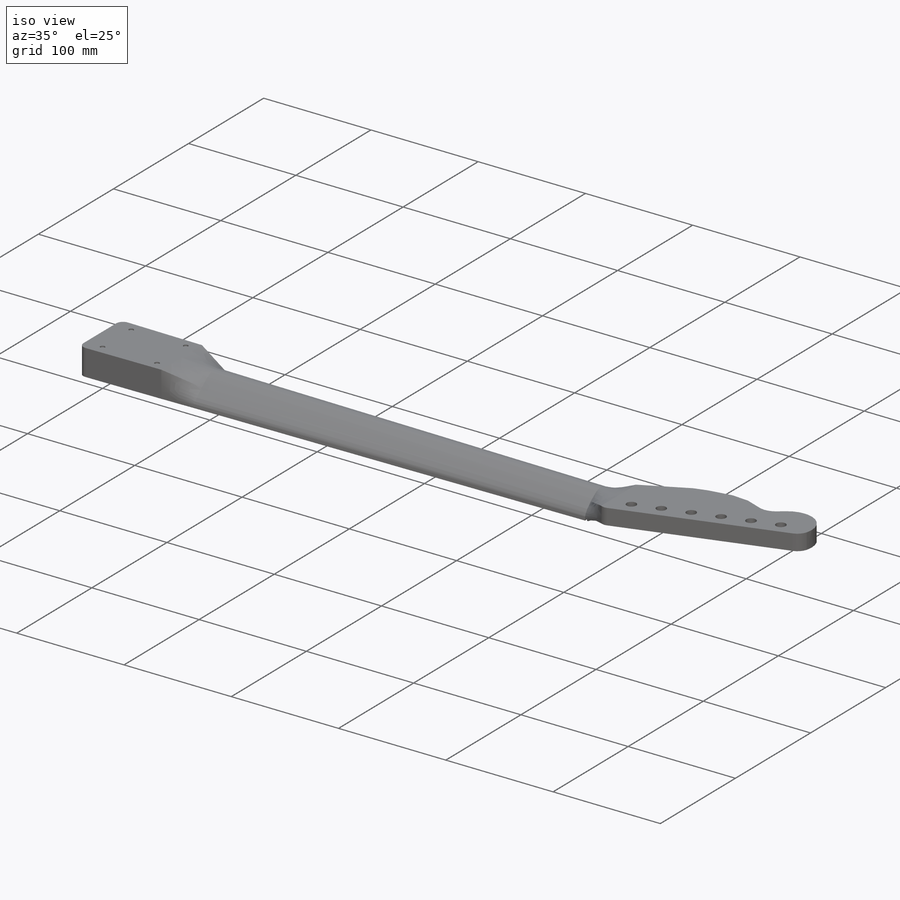
[diagram: iso view]
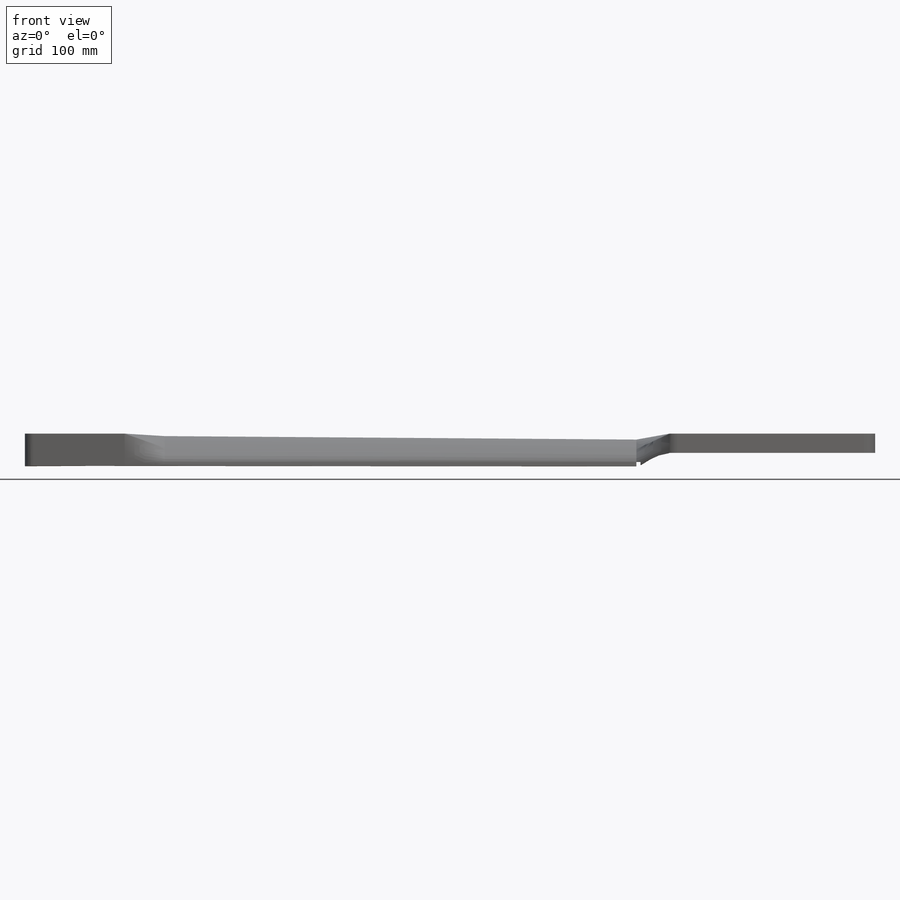
[diagram: front view]
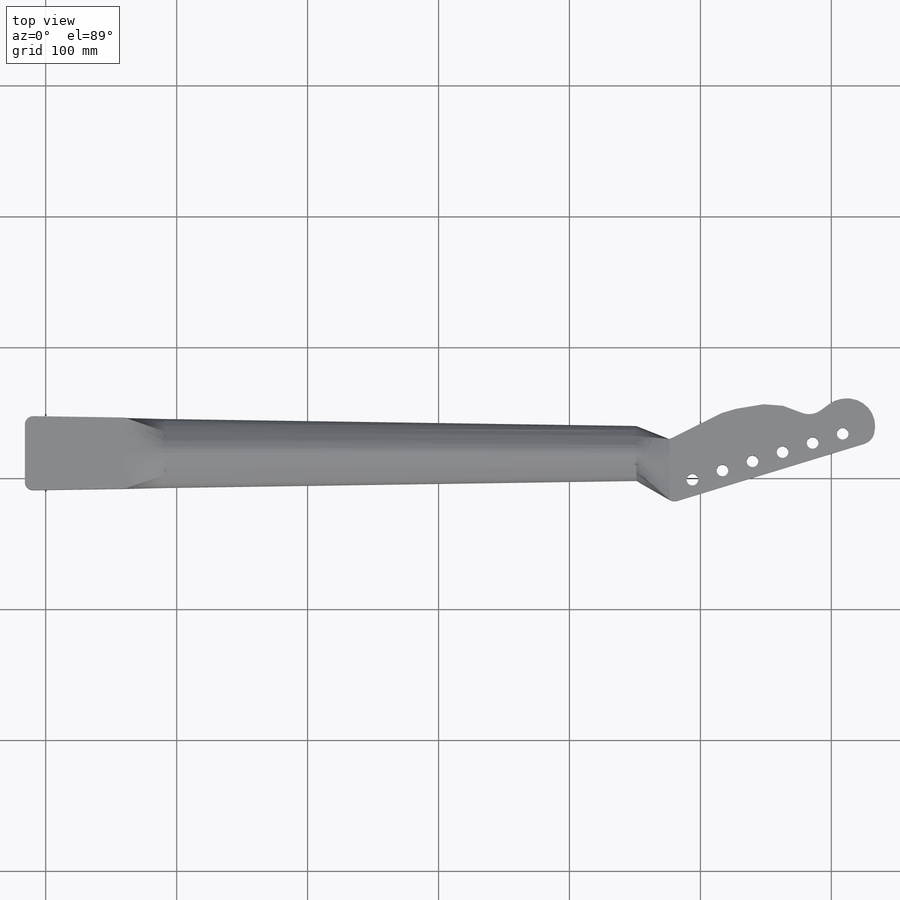
[diagram: top view]
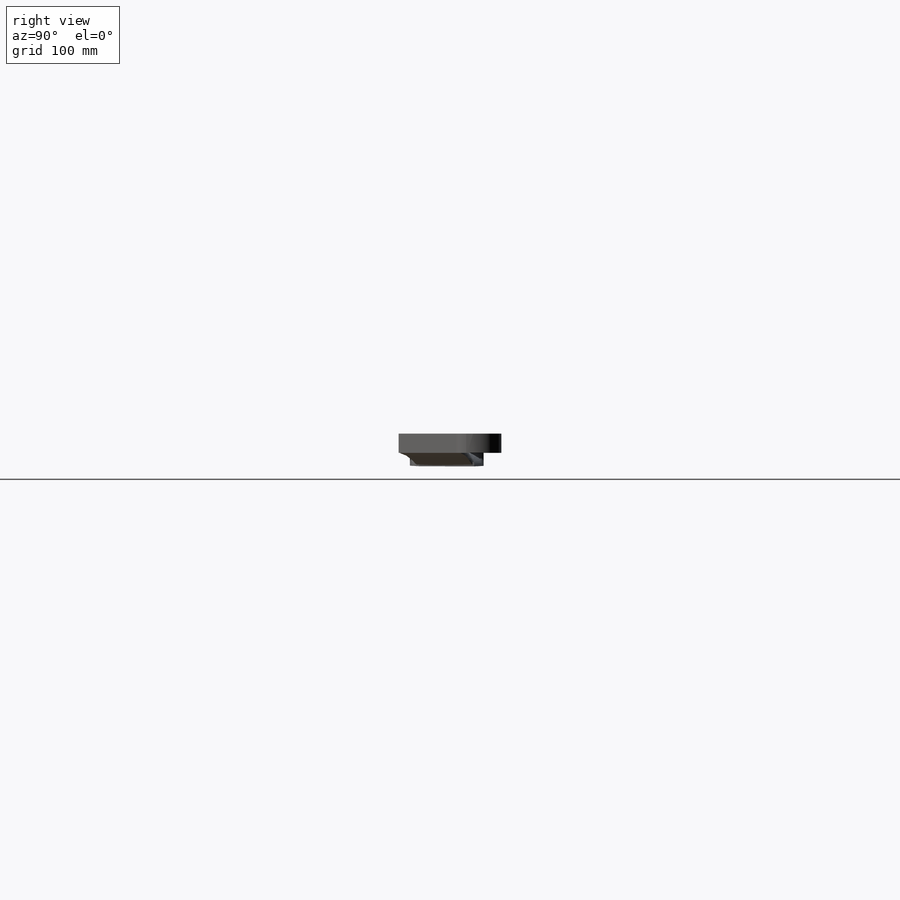
[diagram: right view]
SOLIDWORKS PART (.sldprt)
format: sldprt  version: not decoded by parser v0  size: 601,600 bytes
history: native  units: mm
features: sketch x14, cut_extrude x5, extrude x4, plane x4, material x1, fillet x1 (+14 scaffold rows collapsed)
feature tree (43):
  scaffold x14  (default folders/planes/origin — collapsed)
  material  "Material <not specified>"
  sketch  "Sketch1"  dims[D1=6.35mm]
  extrude  "Extrude1"  Depth=25.654mm
  sketch  "Sketch3"  dims[D1=~52.646523mm D2=~23.726353mm D3=~21.071646mm]
  plane  "Plane1"  Offset=0mm
  sketch  "Sketch7"  dims[D1=2.54mm]
  plane  "Plane2"  Offset=30.48mm
  plane  "Plane3"  Offset=390.779mm
  sketch  "Sketch11"
  sketch  "Sketch13"
  extrude  "Loft4"  [1 undecoded]
  sketch  "Sketch14"
  extrude  "Extrude4"  [1 undecoded]
  sketch  "Sketch18"
  cut_extrude  "Cut-Extrude2"  [1 undecoded]
  sketch  "Sketch20"  dims[D1=~424.885499mm]
  cut_extrude  "Cut-Extrude5"  [1 undecoded]
  sketch  "Sketch22"
  sketch  "Sketch23"
  extrude  "Loft9"  [1 undecoded]
  sketch  "Sketch24"  dims[D1=~2.088217mm]
  cut_extrude  "Cut-Extrude6"  Depth=1.27mm
  sketch  "Sketch25"  dims[D1=3.175mm]
  cut_extrude  "Cut-Extrude7"  Depth=5.08mm
  sketch  "Sketch26"  dims[c1.D1=41.0083mm c2.D1=~49.536241deg]
  cut_extrude  "Cut-Extrude8"  [1 undecoded]
  fillet  "Fillet1"  Radius=1.27mm
  sketch  "Sketch27"
  plane  "Plane4"
decode coverage: 11 of 24 modeling features carry decoded parameters
note: ~ marks probable driven/reference dimensions
note: 6 parameter values undecoded
summary: no parameter record found for 6 features
note: suppression state not decoded; provenance and decode notes live in map.json
